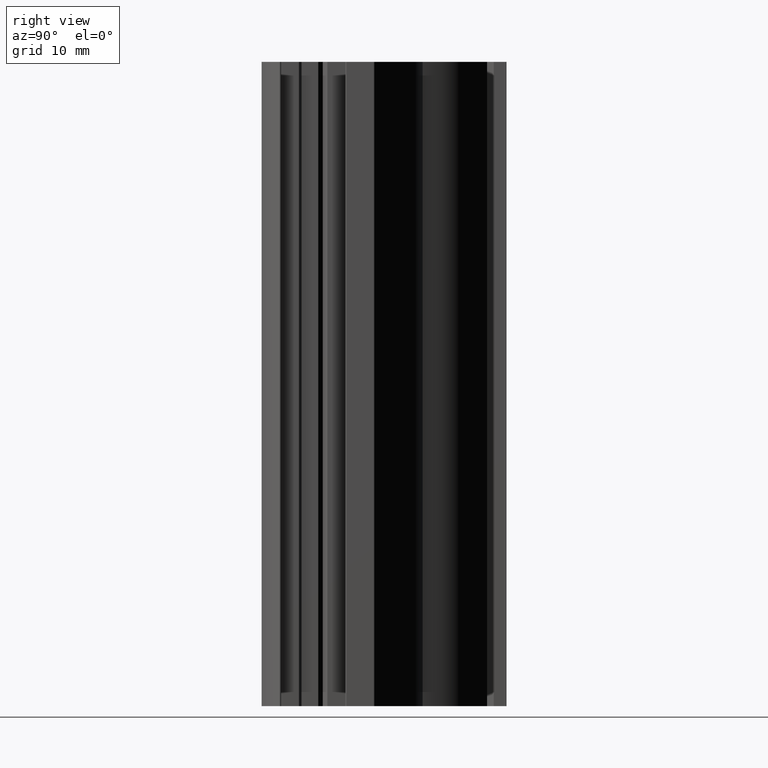
[diagram: clean part render]
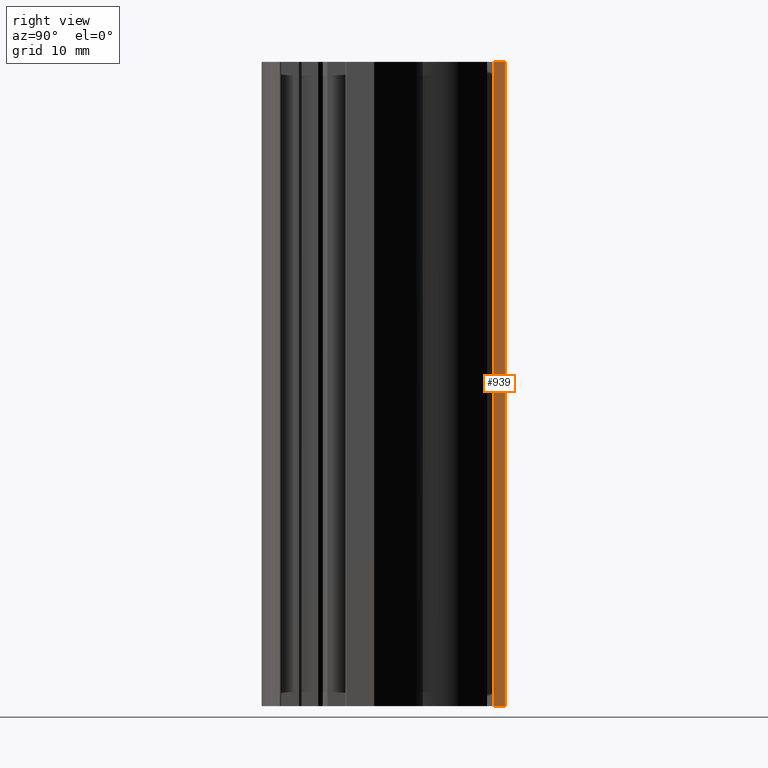
[diagram: same view with one face highlighted and labeled with its STEP entity id]
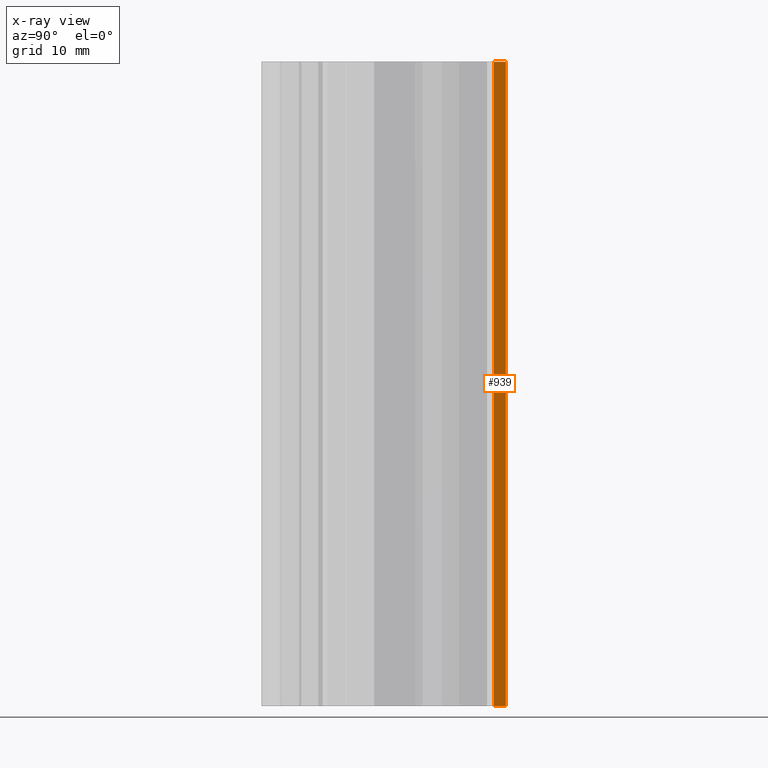
[diagram: x-ray of the same camera — body ghosted, the highlighted face saturated]
A machine part, right view. The second image highlights one B-rep face of the part: STEP entity #939.
The next image is the same camera in x-ray: the body ghosted, the highlighted face saturated — about 0% of this face is hidden behind the body in this view.
In plain terms, the highlighted planar face has unit normal (1, 0, 0).
Its self-contained STEP definition (entity closure, byte-faithful):
#881=CARTESIAN_POINT('',(-60.396446608367114,36.066180019126023,0.0));
#882=VERTEX_POINT('',#881);
#890=CARTESIAN_POINT('',(-60.396446608367114,36.066180019126023,100.0));
#891=VERTEX_POINT('',#890);
#892=CARTESIAN_POINT('',(-60.396446608367114,36.066180019126023,0.0));
#893=DIRECTION('',(0.0,0.0,1.0));
#894=VECTOR('',#893,100.0);
#895=LINE('',#892,#894);
#896=EDGE_CURVE('',#882,#891,#895,.T.);
#909=CARTESIAN_POINT('',(-60.396446608367114,36.066180019126023,0.0));
#910=DIRECTION('',(1.0,0.0,0.0));
#911=DIRECTION('',(0.0,1.0,0.0));
#912=AXIS2_PLACEMENT_3D('',#909,#910,#911);
#913=PLANE('',#912);
#914=CARTESIAN_POINT('',(-60.396446608367114,37.899999996209999,0.0));
#915=VERTEX_POINT('',#914);
#916=CARTESIAN_POINT('',(-60.396446608367114,36.066180019126023,0.0));
#917=DIRECTION('',(0.0,1.0,0.0));
#918=VECTOR('',#917,1.833819977083977);
#919=LINE('',#916,#918);
#920=EDGE_CURVE('',#882,#915,#919,.T.);
#921=ORIENTED_EDGE('',*,*,#920,.T.);
#922=CARTESIAN_POINT('',(-60.396446608367114,37.899999996209999,100.0));
#923=VERTEX_POINT('',#922);
#924=CARTESIAN_POINT('',(-60.396446608367114,37.899999996209999,0.0));
#925=DIRECTION('',(0.0,0.0,1.0));
#926=VECTOR('',#925,100.0);
#927=LINE('',#924,#926);
#928=EDGE_CURVE('',#915,#923,#927,.T.);
#929=ORIENTED_EDGE('',*,*,#928,.T.);
#930=CARTESIAN_POINT('',(-60.396446608367114,36.066180019126023,100.0));
#931=DIRECTION('',(0.0,1.0,0.0));
#932=VECTOR('',#931,1.833819977083977);
#933=LINE('',#930,#932);
#934=EDGE_CURVE('',#891,#923,#933,.T.);
#935=ORIENTED_EDGE('',*,*,#934,.F.);
#936=ORIENTED_EDGE('',*,*,#896,.F.);
#937=EDGE_LOOP('',(#921,#929,#935,#936));
#938=FACE_OUTER_BOUND('',#937,.T.);
#939=ADVANCED_FACE('',(#938),#913,.T.);